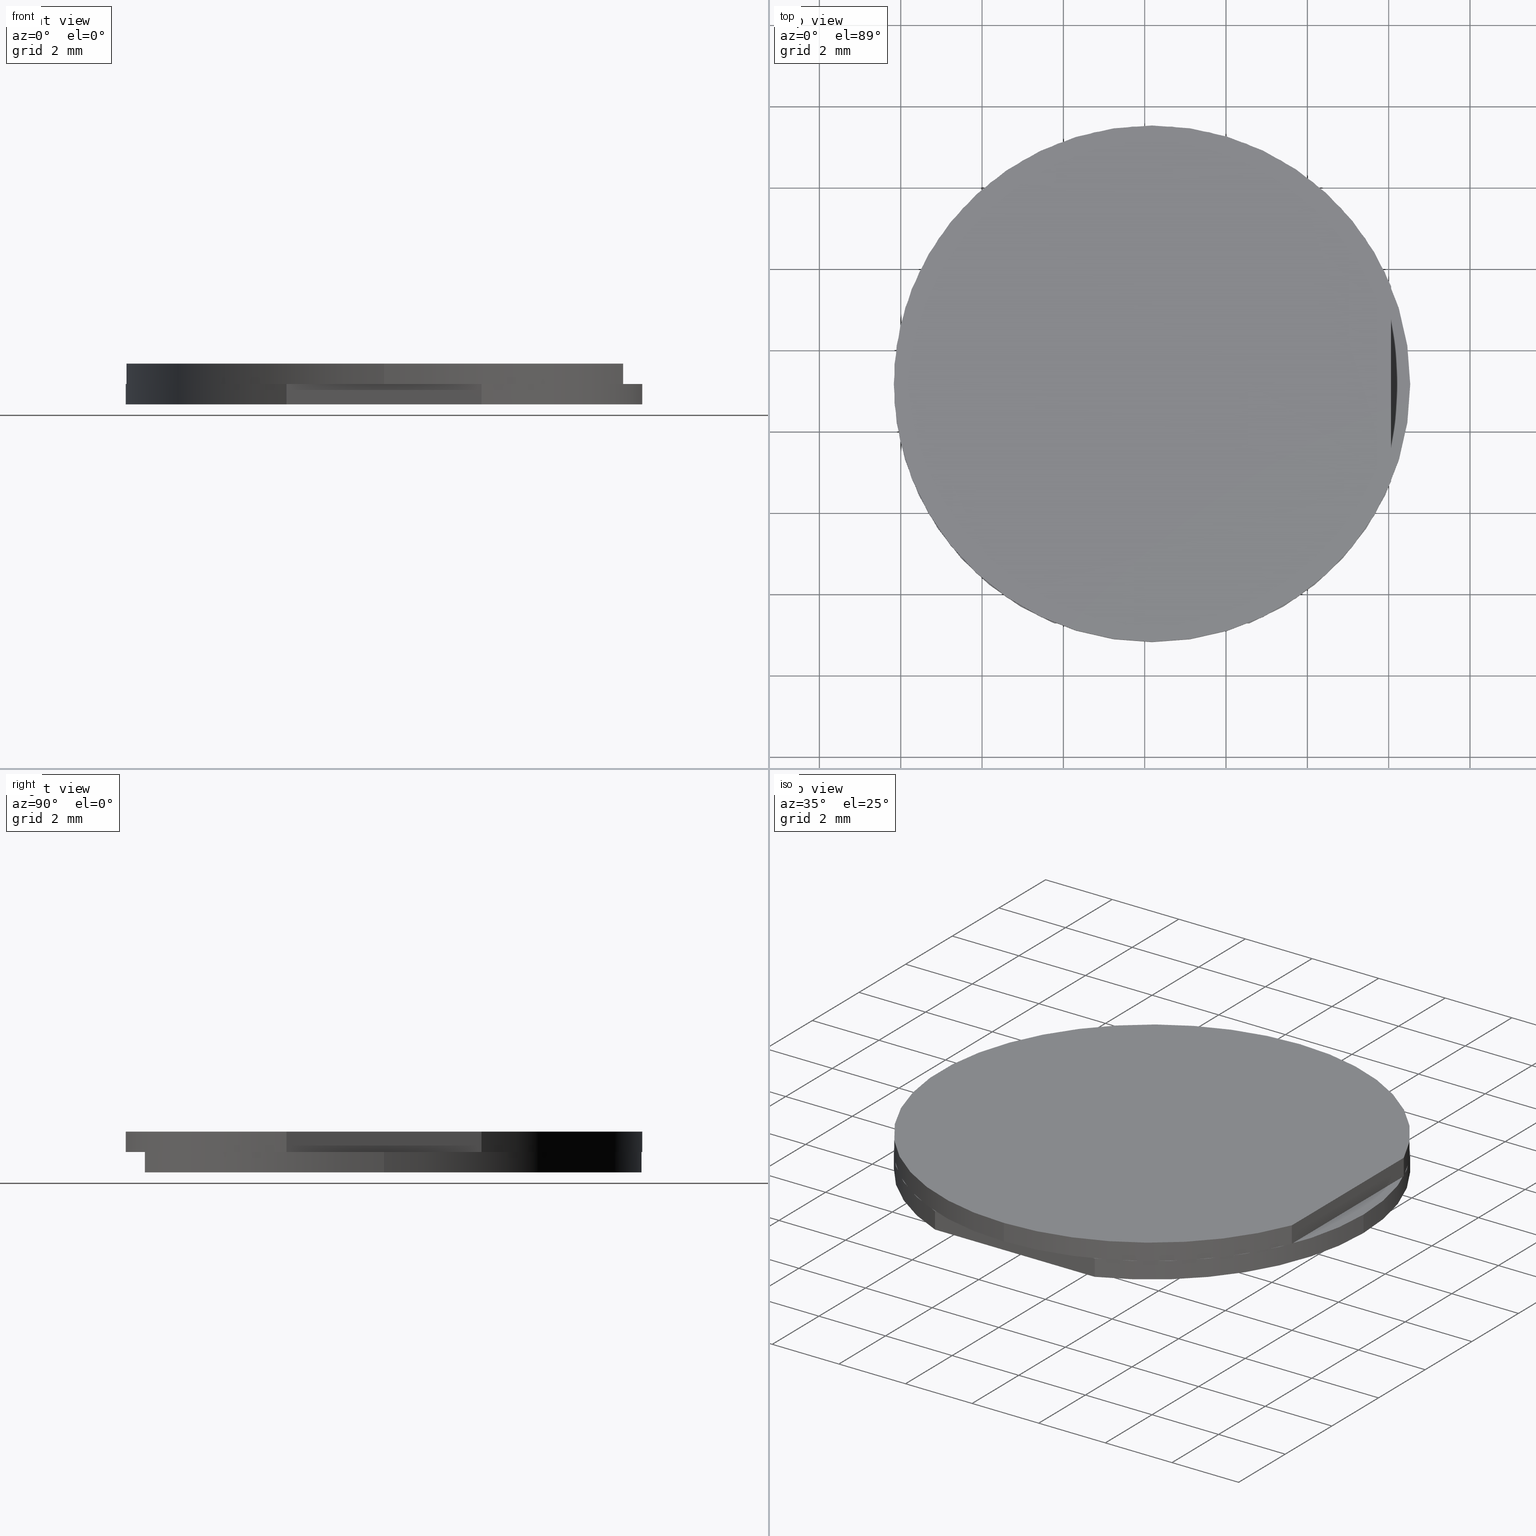
[diagram: canonical four-view strip — front | top / right | iso, engineering-drawing reading convention]
A machine part, canonical four-view strip (front | top / right | iso — engineering-drawing reading convention). The complete STEP part file that produces these views, byte-faithful:
ISO-10303-21;
HEADER;
FILE_DESCRIPTION (( 'STEP AP214' ),
    '1' );
FILE_NAME ('334000.STEP',
    '2020-08-21T07:01:11',
    ( '' ),
    ( '' ),
    'SwSTEP 2.0',
    'SolidWorks 2019',
    '' );
FILE_SCHEMA (( 'AUTOMOTIVE_DESIGN' ));
ENDSEC;

DATA;
#1 = PLANE ( 'NONE',  #296 ) ;
#2 = STYLED_ITEM ( 'NONE', ( #429 ), #545 ) ;
#3 =( LENGTH_UNIT ( ) NAMED_UNIT ( * ) SI_UNIT ( .MILLI., .METRE. ) );
#4 = SURFACE_SIDE_STYLE ('',( #124 ) ) ;
#5 = UNCERTAINTY_MEASURE_WITH_UNIT (LENGTH_MEASURE( 1.000000000000000082E-05 ), #3, 'distance_accuracy_value', 'NONE');
#6 = MANIFOLD_SOLID_BREP ( '��Ƭ-2-solid1', #138 ) ;
#7 =( NAMED_UNIT ( * ) PLANE_ANGLE_UNIT ( ) SI_UNIT ( $, .RADIAN. ) );
#8 = CIRCLE ( 'NONE', #123, 6.349999999999997868 ) ;
#9 =( LENGTH_UNIT ( ) NAMED_UNIT ( * ) SI_UNIT ( .MILLI., .METRE. ) );
#10 = FILL_AREA_STYLE_COLOUR ( '', #488 ) ;
#11 = CARTESIAN_POINT ( 'NONE',  ( 12.17957565082418014, -0.8299026143560144231, 4.486184743181586221 ) ) ;
#12 = CYLINDRICAL_SURFACE ( 'NONE', #269, 6.349999999999999645 ) ;
#13 =( GEOMETRIC_REPRESENTATION_CONTEXT ( 3 ) GLOBAL_UNCERTAINTY_ASSIGNED_CONTEXT ( ( #5 ) ) GLOBAL_UNIT_ASSIGNED_CONTEXT ( ( #3, #385, #416 ) ) REPRESENTATION_CONTEXT ( 'NONE', 'WORKASPACE' ) );
#14 = DIRECTION ( 'NONE',  ( 0.0000000000000000000, 0.0000000000000000000, 1.000000000000000000 ) ) ;
#15 =( NAMED_UNIT ( * ) PLANE_ANGLE_UNIT ( ) SI_UNIT ( $, .RADIAN. ) );
#16 = COLOUR_RGB ( '',1.000000000000000000, 1.000000000000000000, 1.000000000000000000 ) ;
#17 = EDGE_CURVE ( 'NONE', #458, #419, #405, .T. ) ;
#18 = SURFACE_STYLE_FILL_AREA ( #502 ) ;
#19 =( NAMED_UNIT ( * ) SI_UNIT ( $, .STERADIAN. ) SOLID_ANGLE_UNIT ( ) );
#20 = CARTESIAN_POINT ( 'NONE',  ( 12.17957565082418014, -0.8299026143560144231, 3.486184743181585333 ) ) ;
#21 = DIRECTION ( 'NONE',  ( 0.0000000000000000000, 0.0000000000000000000, 1.000000000000000000 ) ) ;
#22 = ORIENTED_EDGE ( 'NONE', *, *, #140, .F. ) ;
#23 = CARTESIAN_POINT ( 'NONE',  ( 12.17957565082418014, -0.8299026143560144231, 3.986184743181585777 ) ) ;
#24 = CARTESIAN_POINT ( 'NONE',  ( 12.17957565082418014, -6.709902614356014539, 3.486184743181585333 ) ) ;
#25 = MECHANICAL_DESIGN_GEOMETRIC_PRESENTATION_REPRESENTATION (  '', ( #427 ), #146 ) ;
#26 = SURFACE_STYLE_USAGE ( .BOTH. , #339 ) ;
#27 = ORIENTED_EDGE ( 'NONE', *, *, #93, .T. ) ;
#28 =( NAMED_UNIT ( * ) SI_UNIT ( $, .STERADIAN. ) SOLID_ANGLE_UNIT ( ) );
#29 = SURFACE_STYLE_USAGE ( .BOTH. , #490 ) ;
#30 = AXIS2_PLACEMENT_3D ( 'NONE', #268, #14, #333 ) ;
#31 = FILL_AREA_STYLE ('',( #380 ) ) ;
#32 = SURFACE_STYLE_USAGE ( .BOTH. , #456 ) ;
#33 = FACE_OUTER_BOUND ( 'NONE', #75, .T. ) ;
#34 = ORIENTED_EDGE ( 'NONE', *, *, #186, .T. ) ;
#35 = ORIENTED_EDGE ( 'NONE', *, *, #362, .T. ) ;
#36 = CARTESIAN_POINT ( 'NONE',  ( 12.17957565082418014, -0.8299026143560144231, 3.486184743181585333 ) ) ;
#37 =( GEOMETRIC_REPRESENTATION_CONTEXT ( 3 ) GLOBAL_UNCERTAINTY_ASSIGNED_CONTEXT ( ( #225 ) ) GLOBAL_UNIT_ASSIGNED_CONTEXT ( ( #109, #64, #189 ) ) REPRESENTATION_CONTEXT ( 'NONE', 'WORKASPACE' ) );
#38 = CIRCLE ( 'NONE', #232, 6.349999999999999645 ) ;
#39 = FILL_AREA_STYLE ('',( #513 ) ) ;
#40 = VERTEX_POINT ( 'NONE', #174 ) ;
#41 = MECHANICAL_DESIGN_GEOMETRIC_PRESENTATION_REPRESENTATION (  '', ( #527 ), #504 ) ;
#42 = ORIENTED_EDGE ( 'NONE', *, *, #403, .F. ) ;
#43 = AXIS2_PLACEMENT_3D ( 'NONE', #297, #149, #457 ) ;
#44 = FILL_AREA_STYLE_COLOUR ( '', #381 ) ;
#45 = PRESENTATION_LAYER_ASSIGNMENT (  '', '', ( #476 ) ) ;
#46 = DIRECTION ( 'NONE',  ( -1.000000000000000000, -0.0000000000000000000, -0.0000000000000000000 ) ) ;
#47 = DIRECTION ( 'NONE',  ( 1.110223024625156294E-16, 1.000000000000000000, 0.0000000000000000000 ) ) ;
#48 = CARTESIAN_POINT ( 'NONE',  ( 12.17957565082418014, -0.8299026143560144231, 3.986184743181585777 ) ) ;
#49 = PRESENTATION_LAYER_ASSIGNMENT (  '', '', ( #531 ) ) ;
#50 = SURFACE_STYLE_FILL_AREA ( #432 ) ;
#51 = CARTESIAN_POINT ( 'NONE',  ( 12.17957565082418014, -0.8299026143560144231, 3.986184743181585777 ) ) ;
#52 = EDGE_CURVE ( 'NONE', #199, #471, #486, .T. ) ;
#53 =( GEOMETRIC_REPRESENTATION_CONTEXT ( 3 ) GLOBAL_UNCERTAINTY_ASSIGNED_CONTEXT ( ( #313 ) ) GLOBAL_UNIT_ASSIGNED_CONTEXT ( ( #77, #256, #408 ) ) REPRESENTATION_CONTEXT ( 'NONE', 'WORKASPACE' ) );
#54 = DIRECTION ( 'NONE',  ( 0.0000000000000000000, -0.0000000000000000000, -1.000000000000000000 ) ) ;
#55 = AXIS2_PLACEMENT_3D ( 'NONE', #370, #499, #441 ) ;
#56 = DIRECTION ( 'NONE',  ( 0.0000000000000000000, -0.0000000000000000000, 1.000000000000000000 ) ) ;
#57 = CARTESIAN_POINT ( 'NONE',  ( 12.17957565082418014, -7.179902614356014290, 4.486184743181586221 ) ) ;
#58 = COLOUR_RGB ( '',1.000000000000000000, 1.000000000000000000, 1.000000000000000000 ) ;
#59 = SURFACE_STYLE_FILL_AREA ( #440 ) ;
#60 = ADVANCED_FACE ( 'NONE', ( #173 ), #1, .F. ) ;
#61 = UNCERTAINTY_MEASURE_WITH_UNIT (LENGTH_MEASURE( 1.000000000000000082E-05 ), #201, 'distance_accuracy_value', 'NONE');
#62 = CYLINDRICAL_SURFACE ( 'NONE', #86, 6.349999999999999645 ) ;
#63 = CARTESIAN_POINT ( 'NONE',  ( 12.17957565082418014, -7.179902614356014290, 4.486184743181586221 ) ) ;
#64 =( NAMED_UNIT ( * ) PLANE_ANGLE_UNIT ( ) SI_UNIT ( $, .RADIAN. ) );
#65 = DIRECTION ( 'NONE',  ( 1.000000000000000000, 0.0000000000000000000, -0.0000000000000000000 ) ) ;
#66 = EDGE_LOOP ( 'NONE', ( #516, #305, #409, #253 ) ) ;
#67 = FACE_OUTER_BOUND ( 'NONE', #120, .T. ) ;
#68 = PRESENTATION_LAYER_ASSIGNMENT (  '', '', ( #325 ) ) ;
#69 = SURFACE_STYLE_USAGE ( .BOTH. , #418 ) ;
#70 = ORIENTED_EDGE ( 'NONE', *, *, #76, .T. ) ;
#71 = DIRECTION ( 'NONE',  ( 0.0000000000000000000, 0.0000000000000000000, 1.000000000000000000 ) ) ;
#72 = ORIENTED_EDGE ( 'NONE', *, *, #345, .F. ) ;
#73 = DIRECTION ( 'NONE',  ( 0.0000000000000000000, 0.0000000000000000000, 1.000000000000000000 ) ) ;
#74 = EDGE_LOOP ( 'NONE', ( #205, #334, #375, #161 ) ) ;
#75 = EDGE_LOOP ( 'NONE', ( #368, #467, #414, #506 ) ) ;
#76 = EDGE_CURVE ( 'NONE', #458, #420, #426, .T. ) ;
#77 =( LENGTH_UNIT ( ) NAMED_UNIT ( * ) SI_UNIT ( .MILLI., .METRE. ) );
#78 = VERTEX_POINT ( 'NONE', #525 ) ;
#79 = DIRECTION ( 'NONE',  ( 1.000000000000000000, 0.0000000000000000000, 0.0000000000000000000 ) ) ;
#80 =( NAMED_UNIT ( * ) SI_UNIT ( $, .STERADIAN. ) SOLID_ANGLE_UNIT ( ) );
#81 = APPLICATION_CONTEXT ( 'automotive_design' ) ;
#82 = ORIENTED_EDGE ( 'NONE', *, *, #345, .T. ) ;
#83 = ADVANCED_FACE ( 'NONE', ( #89 ), #273, .T. ) ;
#84 = LINE ( 'NONE', #185, #382 ) ;
#85 = FACE_OUTER_BOUND ( 'NONE', #157, .T. ) ;
#86 = AXIS2_PLACEMENT_3D ( 'NONE', #142, #361, #103 ) ;
#87 = DIRECTION ( 'NONE',  ( 0.0000000000000000000, 0.0000000000000000000, 1.000000000000000000 ) ) ;
#88 = AXIS2_PLACEMENT_3D ( 'NONE', #51, #348, #176 ) ;
#89 = FACE_OUTER_BOUND ( 'NONE', #115, .T. ) ;
#90 = FILL_AREA_STYLE_COLOUR ( '', #125 ) ;
#91 = ADVANCED_FACE ( 'NONE', ( #475 ), #12, .T. ) ;
#92 = CARTESIAN_POINT ( 'NONE',  ( 14.57709520236072720, -6.709902614356014539, 3.986184743181585777 ) ) ;
#93 = EDGE_CURVE ( 'NONE', #508, #255, #188, .T. ) ;
#94 = PRESENTATION_STYLE_ASSIGNMENT (( #481 ) ) ;
#95 = UNCERTAINTY_MEASURE_WITH_UNIT (LENGTH_MEASURE( 1.000000000000000082E-05 ), #401, 'distance_accuracy_value', 'NONE');
#96 =( NAMED_UNIT ( * ) SI_UNIT ( $, .STERADIAN. ) SOLID_ANGLE_UNIT ( ) );
#97 = CARTESIAN_POINT ( 'NONE',  ( 5.829575650824181388, -0.8299026143560144231, 3.986184743181585777 ) ) ;
#98 = STYLED_ITEM ( 'NONE', ( #387 ), #307 ) ;
#99 = FILL_AREA_STYLE_COLOUR ( '', #210 ) ;
#100 = UNCERTAINTY_MEASURE_WITH_UNIT (LENGTH_MEASURE( 1.000000000000000082E-05 ), #377, 'distance_accuracy_value', 'NONE');
#101 = FILL_AREA_STYLE ('',( #108 ) ) ;
#102 = AXIS2_PLACEMENT_3D ( 'NONE', #435, #56, #47 ) ;
#103 = DIRECTION ( 'NONE',  ( 0.0000000000000000000, -1.000000000000000000, 0.0000000000000000000 ) ) ;
#104 = PRODUCT ( '334000', '334000', '', ( #220 ) ) ;
#105 = CARTESIAN_POINT ( 'NONE',  ( 9.782056099287634865, -6.709902614356014539, 3.986184743181585777 ) ) ;
#106 = VECTOR ( 'NONE', #290, 1000.000000000000000 ) ;
#107 = FILL_AREA_STYLE ('',( #492 ) ) ;
#108 = FILL_AREA_STYLE_COLOUR ( '', #148 ) ;
#109 =( LENGTH_UNIT ( ) NAMED_UNIT ( * ) SI_UNIT ( .MILLI., .METRE. ) );
#110 = PRESENTATION_STYLE_ASSIGNMENT (( #32 ) ) ;
#111 = CARTESIAN_POINT ( 'NONE',  ( 18.52957565082417801, -0.8299026143560136459, 3.486184743181585333 ) ) ;
#112 = AXIS2_PLACEMENT_3D ( 'NONE', #20, #448, #65 ) ;
#113 = ORIENTED_EDGE ( 'NONE', *, *, #158, .F. ) ;
#114 = CARTESIAN_POINT ( 'NONE',  ( 18.05957565082417915, -3.227422165892561257, 4.486184743181586221 ) ) ;
#115 = EDGE_LOOP ( 'NONE', ( #162, #82, #335, #497 ) ) ;
#116 = PLANE ( 'NONE',  #112 ) ;
#117 = AXIS2_PLACEMENT_3D ( 'NONE', #11, #183, #315 ) ;
#118 =( GEOMETRIC_REPRESENTATION_CONTEXT ( 3 ) GLOBAL_UNCERTAINTY_ASSIGNED_CONTEXT ( ( #141 ) ) GLOBAL_UNIT_ASSIGNED_CONTEXT ( ( #9, #7, #96 ) ) REPRESENTATION_CONTEXT ( 'NONE', 'WORKASPACE' ) );
#119 = CYLINDRICAL_SURFACE ( 'NONE', #43, 6.349999999999999645 ) ;
#120 = EDGE_LOOP ( 'NONE', ( #72, #150, #298, #127 ) ) ;
#121 = PRESENTATION_LAYER_ASSIGNMENT (  '', '', ( #2 ) ) ;
#122 = DIRECTION ( 'NONE',  ( -1.000000000000000000, 1.110223024625156294E-16, 0.0000000000000000000 ) ) ;
#123 = AXIS2_PLACEMENT_3D ( 'NONE', #36, #21, #213 ) ;
#124 = SURFACE_STYLE_FILL_AREA ( #39 ) ;
#125 = COLOUR_RGB ( '',1.000000000000000000, 1.000000000000000000, 1.000000000000000000 ) ;
#126 = MECHANICAL_DESIGN_GEOMETRIC_PRESENTATION_REPRESENTATION (  '', ( #197 ), #37 ) ;
#127 = ORIENTED_EDGE ( 'NONE', *, *, #52, .T. ) ;
#128 = AXIS2_PLACEMENT_3D ( 'NONE', #303, #391, #428 ) ;
#129 = LINE ( 'NONE', #472, #212 ) ;
#130 = FILL_AREA_STYLE_COLOUR ( '', #58 ) ;
#131 = DIRECTION ( 'NONE',  ( 0.0000000000000000000, -0.0000000000000000000, 1.000000000000000000 ) ) ;
#132 = STYLED_ITEM ( 'NONE', ( #224 ), #60 ) ;
#133 = SURFACE_STYLE_FILL_AREA ( #393 ) ;
#134 = COLOUR_RGB ( '',1.000000000000000000, 1.000000000000000000, 1.000000000000000000 ) ;
#135 = CARTESIAN_POINT ( 'NONE',  ( 5.829575650824181388, -0.8299026143560144231, 3.986184743181585777 ) ) ;
#136 =( NAMED_UNIT ( * ) SI_UNIT ( $, .STERADIAN. ) SOLID_ANGLE_UNIT ( ) );
#137 = SURFACE_SIDE_STYLE ('',( #559 ) ) ;
#138 = CLOSED_SHELL ( 'NONE', ( #83, #310, #191, #500, #60, #223 ) ) ;
#139 =( GEOMETRIC_REPRESENTATION_CONTEXT ( 3 ) GLOBAL_UNCERTAINTY_ASSIGNED_CONTEXT ( ( #283 ) ) GLOBAL_UNIT_ASSIGNED_CONTEXT ( ( #351, #314, #438 ) ) REPRESENTATION_CONTEXT ( 'NONE', 'WORKASPACE' ) );
#140 = EDGE_CURVE ( 'NONE', #341, #415, #523, .T. ) ;
#141 = UNCERTAINTY_MEASURE_WITH_UNIT (LENGTH_MEASURE( 1.000000000000000082E-05 ), #9, 'distance_accuracy_value', 'NONE');
#142 = CARTESIAN_POINT ( 'NONE',  ( 12.17957565082418014, -0.8299026143560144231, 4.486184743181586221 ) ) ;
#143 = DIRECTION ( 'NONE',  ( -1.000000000000000000, -0.0000000000000000000, 0.0000000000000000000 ) ) ;
#144 = CARTESIAN_POINT ( 'NONE',  ( 12.17957565082418014, -0.8299026143560144231, 3.486184743181585333 ) ) ;
#145 = AXIS2_PLACEMENT_3D ( 'NONE', #23, #406, #364 ) ;
#146 =( GEOMETRIC_REPRESENTATION_CONTEXT ( 3 ) GLOBAL_UNCERTAINTY_ASSIGNED_CONTEXT ( ( #532 ) ) GLOBAL_UNIT_ASSIGNED_CONTEXT ( ( #328, #444, #19 ) ) REPRESENTATION_CONTEXT ( 'NONE', 'WORKASPACE' ) );
#147 = EDGE_CURVE ( 'NONE', #199, #250, #84, .T. ) ;
#148 = COLOUR_RGB ( '',1.000000000000000000, 1.000000000000000000, 1.000000000000000000 ) ;
#149 = DIRECTION ( 'NONE',  ( -0.0000000000000000000, -0.0000000000000000000, -1.000000000000000000 ) ) ;
#150 = ORIENTED_EDGE ( 'NONE', *, *, #379, .F. ) ;
#151 = DIRECTION ( 'NONE',  ( 0.0000000000000000000, -0.0000000000000000000, -1.000000000000000000 ) ) ;
#152 = PLANE ( 'NONE',  #304 ) ;
#153 =( NAMED_UNIT ( * ) SI_UNIT ( $, .STERADIAN. ) SOLID_ANGLE_UNIT ( ) );
#154 = MECHANICAL_DESIGN_GEOMETRIC_PRESENTATION_REPRESENTATION (  '', ( #446 ), #431 ) ;
#155 = DIRECTION ( 'NONE',  ( 0.0000000000000000000, 0.0000000000000000000, 1.000000000000000000 ) ) ;
#156 = VERTEX_POINT ( 'NONE', #397 ) ;
#157 = EDGE_LOOP ( 'NONE', ( #425, #70, #462, #242 ) ) ;
#158 = EDGE_CURVE ( 'NONE', #508, #539, #129, .T. ) ;
#159 = EDGE_CURVE ( 'NONE', #40, #458, #38, .T. ) ;
#160 = CARTESIAN_POINT ( 'NONE',  ( 18.05957565082417915, -6.717240688047029451, 4.486184743181586221 ) ) ;
#161 = ORIENTED_EDGE ( 'NONE', *, *, #202, .T. ) ;
#162 = ORIENTED_EDGE ( 'NONE', *, *, #159, .F. ) ;
#163 = STYLED_ITEM ( 'NONE', ( #198 ), #223 ) ;
#164 = AXIS2_PLACEMENT_3D ( 'NONE', #390, #221, #347 ) ;
#165 = EDGE_CURVE ( 'NONE', #156, #78, #240, .T. ) ;
#166 = ORIENTED_EDGE ( 'NONE', *, *, #403, .T. ) ;
#167 = PRESENTATION_STYLE_ASSIGNMENT (( #376 ) ) ;
#168 = PRESENTATION_STYLE_ASSIGNMENT (( #495 ) ) ;
#169 = EDGE_LOOP ( 'NONE', ( #453, #332, #246, #411 ) ) ;
#170 = SHAPE_DEFINITION_REPRESENTATION ( #279, #545 ) ;
#171 = MECHANICAL_DESIGN_GEOMETRIC_PRESENTATION_REPRESENTATION (  '', ( #522 ), #452 ) ;
#172 =( GEOMETRIC_REPRESENTATION_CONTEXT ( 3 ) GLOBAL_UNCERTAINTY_ASSIGNED_CONTEXT ( ( #360 ) ) GLOBAL_UNIT_ASSIGNED_CONTEXT ( ( #311, #344, #219 ) ) REPRESENTATION_CONTEXT ( 'NONE', 'WORKASPACE' ) );
#173 = FACE_OUTER_BOUND ( 'NONE', #66, .T. ) ;
#174 = CARTESIAN_POINT ( 'NONE',  ( 12.17957565082418014, 5.520097385643985000, 4.486184743181586221 ) ) ;
#175 = DIRECTION ( 'NONE',  ( -1.000000000000000000, 0.0000000000000000000, 0.0000000000000000000 ) ) ;
#176 = DIRECTION ( 'NONE',  ( 1.000000000000000000, 0.0000000000000000000, 0.0000000000000000000 ) ) ;
#177 = CARTESIAN_POINT ( 'NONE',  ( 18.05957565082417915, -3.227422165892561257, 4.486184743181586221 ) ) ;
#178 = MECHANICAL_DESIGN_GEOMETRIC_PRESENTATION_REPRESENTATION (  '', ( #163 ), #53 ) ;
#179 = FILL_AREA_STYLE ('',( #99 ) ) ;
#180 = DIRECTION ( 'NONE',  ( 0.0000000000000000000, 0.0000000000000000000, 1.000000000000000000 ) ) ;
#181 = SURFACE_STYLE_USAGE ( .BOTH. , #137 ) ;
#182 = VECTOR ( 'NONE', #151, 1000.000000000000000 ) ;
#183 = DIRECTION ( 'NONE',  ( 0.0000000000000000000, -0.0000000000000000000, -1.000000000000000000 ) ) ;
#184 = FILL_AREA_STYLE_COLOUR ( '', #555 ) ;
#185 = CARTESIAN_POINT ( 'NONE',  ( 18.05957565082417915, -0.8299026143560150892, 3.986184743181585777 ) ) ;
#186 = EDGE_CURVE ( 'NONE', #341, #539, #469, .T. ) ;
#187 =( GEOMETRIC_REPRESENTATION_CONTEXT ( 3 ) GLOBAL_UNCERTAINTY_ASSIGNED_CONTEXT ( ( #211 ) ) GLOBAL_UNIT_ASSIGNED_CONTEXT ( ( #245, #413, #374 ) ) REPRESENTATION_CONTEXT ( 'NONE', 'WORKASPACE' ) );
#188 = CIRCLE ( 'NONE', #88, 6.349999999999997868 ) ;
#189 =( NAMED_UNIT ( * ) SI_UNIT ( $, .STERADIAN. ) SOLID_ANGLE_UNIT ( ) );
#190 = FILL_AREA_STYLE ('',( #412 ) ) ;
#191 = ADVANCED_FACE ( 'NONE', ( #67 ), #62, .T. ) ;
#192 = SURFACE_SIDE_STYLE ('',( #18 ) ) ;
#193 = CARTESIAN_POINT ( 'NONE',  ( 18.52957565082417801, -0.8299026143560136459, 3.986184743181585777 ) ) ;
#194 = ORIENTED_EDGE ( 'NONE', *, *, #147, .F. ) ;
#195 = CARTESIAN_POINT ( 'NONE',  ( 5.829575650824181388, -0.8299026143560144231, 3.486184743181585333 ) ) ;
#196 = PRESENTATION_LAYER_ASSIGNMENT (  '', '', ( #468 ) ) ;
#197 = STYLED_ITEM ( 'NONE', ( #442 ), #191 ) ;
#198 = PRESENTATION_STYLE_ASSIGNMENT (( #26 ) ) ;
#199 = VERTEX_POINT ( 'NONE', #324 ) ;
#200 = LINE ( 'NONE', #533, #340 ) ;
#201 =( LENGTH_UNIT ( ) NAMED_UNIT ( * ) SI_UNIT ( .MILLI., .METRE. ) );
#202 = EDGE_CURVE ( 'NONE', #78, #539, #278, .T. ) ;
#203 = AXIS2_PLACEMENT_3D ( 'NONE', #556, #270, #295 ) ;
#204 = ORIENTED_EDGE ( 'NONE', *, *, #362, .F. ) ;
#205 = ORIENTED_EDGE ( 'NONE', *, *, #186, .F. ) ;
#206 = ADVANCED_FACE ( 'NONE', ( #365 ), #152, .T. ) ;
#207 = PLANE ( 'NONE',  #237 ) ;
#208 = VERTEX_POINT ( 'NONE', #111 ) ;
#209 = DIRECTION ( 'NONE',  ( 0.0000000000000000000, 0.0000000000000000000, 1.000000000000000000 ) ) ;
#210 = COLOUR_RGB ( '',1.000000000000000000, 1.000000000000000000, 1.000000000000000000 ) ;
#211 = UNCERTAINTY_MEASURE_WITH_UNIT (LENGTH_MEASURE( 1.000000000000000082E-05 ), #245, 'distance_accuracy_value', 'NONE');
#212 = VECTOR ( 'NONE', #46, 1000.000000000000000 ) ;
#213 = DIRECTION ( 'NONE',  ( 1.000000000000000000, 0.0000000000000000000, 0.0000000000000000000 ) ) ;
#214 = CARTESIAN_POINT ( 'NONE',  ( 0.0000000000000000000, 0.0000000000000000000, 0.0000000000000000000 ) ) ;
#215 = ORIENTED_EDGE ( 'NONE', *, *, #252, .T. ) ;
#216 = COLOUR_RGB ( '',1.000000000000000000, 1.000000000000000000, 1.000000000000000000 ) ;
#217 =( NAMED_UNIT ( * ) PLANE_ANGLE_UNIT ( ) SI_UNIT ( $, .RADIAN. ) );
#218 = MECHANICAL_DESIGN_GEOMETRIC_PRESENTATION_REPRESENTATION (  '', ( #463 ), #228 ) ;
#219 =( NAMED_UNIT ( * ) SI_UNIT ( $, .STERADIAN. ) SOLID_ANGLE_UNIT ( ) );
#220 = PRODUCT_CONTEXT ( 'NONE', #287, 'mechanical' ) ;
#221 = DIRECTION ( 'NONE',  ( 0.0000000000000000000, 0.0000000000000000000, 1.000000000000000000 ) ) ;
#222 = PRESENTATION_STYLE_ASSIGNMENT (( #236 ) ) ;
#223 = ADVANCED_FACE ( 'NONE', ( #383 ), #540, .F. ) ;
#224 = PRESENTATION_STYLE_ASSIGNMENT (( #520 ) ) ;
#225 = UNCERTAINTY_MEASURE_WITH_UNIT (LENGTH_MEASURE( 1.000000000000000082E-05 ), #109, 'distance_accuracy_value', 'NONE');
#226 = SURFACE_STYLE_USAGE ( .BOTH. , #394 ) ;
#227 = CARTESIAN_POINT ( 'NONE',  ( 12.17957565082418014, 5.520097385643985000, 3.986184743181585777 ) ) ;
#228 =( GEOMETRIC_REPRESENTATION_CONTEXT ( 3 ) GLOBAL_UNCERTAINTY_ASSIGNED_CONTEXT ( ( #61 ) ) GLOBAL_UNIT_ASSIGNED_CONTEXT ( ( #201, #239, #28 ) ) REPRESENTATION_CONTEXT ( 'NONE', 'WORKASPACE' ) );
#229 = DIRECTION ( 'NONE',  ( -1.110223024625156294E-16, -1.000000000000000000, 0.0000000000000000000 ) ) ;
#230 = VECTOR ( 'NONE', #331, 1000.000000000000000 ) ;
#231 = UNCERTAINTY_MEASURE_WITH_UNIT (LENGTH_MEASURE( 1.000000000000000082E-05 ), #384, 'distance_accuracy_value', 'NONE');
#232 = AXIS2_PLACEMENT_3D ( 'NONE', #312, #180, #447 ) ;
#233 = SURFACE_SIDE_STYLE ('',( #357 ) ) ;
#234 =( LENGTH_UNIT ( ) NAMED_UNIT ( * ) SI_UNIT ( .MILLI., .METRE. ) );
#235 = FACE_OUTER_BOUND ( 'NONE', #294, .T. ) ;
#236 = SURFACE_STYLE_USAGE ( .BOTH. , #233 ) ;
#237 = AXIS2_PLACEMENT_3D ( 'NONE', #474, #519, #131 ) ;
#238 = CARTESIAN_POINT ( 'NONE',  ( 12.17957565082418014, -0.8299026143560144231, 4.486184743181586221 ) ) ;
#239 =( NAMED_UNIT ( * ) PLANE_ANGLE_UNIT ( ) SI_UNIT ( $, .RADIAN. ) );
#240 = LINE ( 'NONE', #24, #538 ) ;
#241 =( GEOMETRIC_REPRESENTATION_CONTEXT ( 3 ) GLOBAL_UNCERTAINTY_ASSIGNED_CONTEXT ( ( #489 ) ) GLOBAL_UNIT_ASSIGNED_CONTEXT ( ( #466, #515, #306 ) ) REPRESENTATION_CONTEXT ( 'NONE', 'WORKASPACE' ) );
#242 = ORIENTED_EDGE ( 'NONE', *, *, #544, .T. ) ;
#243 = SURFACE_STYLE_FILL_AREA ( #107 ) ;
#244 = CIRCLE ( 'NONE', #557, 6.349999999999997868 ) ;
#245 =( LENGTH_UNIT ( ) NAMED_UNIT ( * ) SI_UNIT ( .MILLI., .METRE. ) );
#246 = ORIENTED_EDGE ( 'NONE', *, *, #417, .T. ) ;
#247 = PRESENTATION_LAYER_ASSIGNMENT (  '', '', ( #427 ) ) ;
#248 = DIRECTION ( 'NONE',  ( 0.0000000000000000000, 0.0000000000000000000, 1.000000000000000000 ) ) ;
#249 = MECHANICAL_DESIGN_GEOMETRIC_PRESENTATION_REPRESENTATION (  '', ( #468 ), #139 ) ;
#250 = VERTEX_POINT ( 'NONE', #254 ) ;
#251 = CIRCLE ( 'NONE', #422, 6.349999999999999645 ) ;
#252 = EDGE_CURVE ( 'NONE', #337, #419, #302, .T. ) ;
#253 = ORIENTED_EDGE ( 'NONE', *, *, #437, .F. ) ;
#254 = CARTESIAN_POINT ( 'NONE',  ( 18.05957565082417915, -3.227422165892561257, 3.986184743181585777 ) ) ;
#255 = VERTEX_POINT ( 'NONE', #461 ) ;
#256 =( NAMED_UNIT ( * ) PLANE_ANGLE_UNIT ( ) SI_UNIT ( $, .RADIAN. ) );
#257 = SURFACE_STYLE_FILL_AREA ( #31 ) ;
#258 = CYLINDRICAL_SURFACE ( 'NONE', #128, 6.349999999999999645 ) ;
#259 = CIRCLE ( 'NONE', #367, 6.349999999999997868 ) ;
#260 = EDGE_CURVE ( 'NONE', #415, #78, #259, .T. ) ;
#261 = ORIENTED_EDGE ( 'NONE', *, *, #280, .T. ) ;
#262 = DIRECTION ( 'NONE',  ( 1.000000000000000000, 0.0000000000000000000, 0.0000000000000000000 ) ) ;
#263 = MECHANICAL_DESIGN_GEOMETRIC_PRESENTATION_REPRESENTATION (  '', ( #2 ), #13 ) ;
#264 = ORIENTED_EDGE ( 'NONE', *, *, #165, .T. ) ;
#265 = DIRECTION ( 'NONE',  ( 1.110223024625156294E-16, 1.000000000000000000, 0.0000000000000000000 ) ) ;
#266 = FILL_AREA_STYLE_COLOUR ( '', #134 ) ;
#267 = SURFACE_STYLE_USAGE ( .BOTH. , #473 ) ;
#268 = CARTESIAN_POINT ( 'NONE',  ( 12.17957565082418014, -0.8299026143560144231, 3.986184743181585777 ) ) ;
#269 = AXIS2_PLACEMENT_3D ( 'NONE', #317, #485, #175 ) ;
#270 = DIRECTION ( 'NONE',  ( 0.0000000000000000000, 0.0000000000000000000, 1.000000000000000000 ) ) ;
#271 = EDGE_CURVE ( 'NONE', #156, #208, #8, .T. ) ;
#272 =( NAMED_UNIT ( * ) PLANE_ANGLE_UNIT ( ) SI_UNIT ( $, .RADIAN. ) );
#273 = CYLINDRICAL_SURFACE ( 'NONE', #529, 6.349999999999999645 ) ;
#274 = PLANE ( 'NONE',  #102 ) ;
#275 = LINE ( 'NONE', #355, #359 ) ;
#276 = DIRECTION ( 'NONE',  ( -0.0000000000000000000, -0.0000000000000000000, -1.000000000000000000 ) ) ;
#277 = PRESENTATION_LAYER_ASSIGNMENT (  '', '', ( #446 ) ) ;
#278 = LINE ( 'NONE', #105, #106 ) ;
#279 = PRODUCT_DEFINITION_SHAPE ( 'NONE', 'NONE',  #320 ) ;
#280 = EDGE_CURVE ( 'NONE', #255, #208, #336, .T. ) ;
#281 = CARTESIAN_POINT ( 'NONE',  ( 12.17957565082418014, -7.179902614356014290, 3.986184743181585777 ) ) ;
#282 = PRESENTATION_STYLE_ASSIGNMENT (( #450 ) ) ;
#283 = UNCERTAINTY_MEASURE_WITH_UNIT (LENGTH_MEASURE( 1.000000000000000082E-05 ), #351, 'distance_accuracy_value', 'NONE');
#284 = FACE_OUTER_BOUND ( 'NONE', #74, .T. ) ;
#285 = FILL_AREA_STYLE ('',( #507 ) ) ;
#286 = ADVANCED_FACE ( 'NONE', ( #501 ), #119, .T. ) ;
#287 = APPLICATION_CONTEXT ( 'automotive_design' ) ;
#288 = PRESENTATION_LAYER_ASSIGNMENT (  '', '', ( #527 ) ) ;
#289 = CARTESIAN_POINT ( 'NONE',  ( 18.05957565082417915, 1.567616937180530634, 4.486184743181586221 ) ) ;
#290 = DIRECTION ( 'NONE',  ( 0.0000000000000000000, 0.0000000000000000000, 1.000000000000000000 ) ) ;
#291 = DIRECTION ( 'NONE',  ( 1.000000000000000000, 0.0000000000000000000, 0.0000000000000000000 ) ) ;
#292 = FILL_AREA_STYLE_COLOUR ( '', #404 ) ;
#293 = ORIENTED_EDGE ( 'NONE', *, *, #260, .F. ) ;
#294 = EDGE_LOOP ( 'NONE', ( #554, #264, #293, #204 ) ) ;
#295 = DIRECTION ( 'NONE',  ( 0.0000000000000000000, 1.000000000000000000, 0.0000000000000000000 ) ) ;
#296 = AXIS2_PLACEMENT_3D ( 'NONE', #48, #350, #265 ) ;
#297 = CARTESIAN_POINT ( 'NONE',  ( 12.17957565082418014, -0.8299026143560144231, 3.986184743181585777 ) ) ;
#298 = ORIENTED_EDGE ( 'NONE', *, *, #389, .T. ) ;
#299 = APPLICATION_PROTOCOL_DEFINITION ( 'draft international standard', 'automotive_design', 1998, #287 ) ;
#300 = DIRECTION ( 'NONE',  ( 1.000000000000000000, 0.0000000000000000000, -0.0000000000000000000 ) ) ;
#301 = ORIENTED_EDGE ( 'NONE', *, *, #379, .T. ) ;
#302 = LINE ( 'NONE', #160, #230 ) ;
#303 = CARTESIAN_POINT ( 'NONE',  ( 12.17957565082418014, -0.8299026143560144231, 3.986184743181585777 ) ) ;
#304 = AXIS2_PLACEMENT_3D ( 'NONE', #319, #487, #300 ) ;
#305 = ORIENTED_EDGE ( 'NONE', *, *, #147, .T. ) ;
#306 =( NAMED_UNIT ( * ) SI_UNIT ( $, .STERADIAN. ) SOLID_ANGLE_UNIT ( ) );
#307 = ADVANCED_FACE ( 'NONE', ( #33 ), #207, .F. ) ;
#308 = SURFACE_SIDE_STYLE ('',( #133 ) ) ;
#309 = FILL_AREA_STYLE ('',( #130 ) ) ;
#310 = ADVANCED_FACE ( 'NONE', ( #85 ), #396, .T. ) ;
#311 =( LENGTH_UNIT ( ) NAMED_UNIT ( * ) SI_UNIT ( .MILLI., .METRE. ) );
#312 = CARTESIAN_POINT ( 'NONE',  ( 12.17957565082418014, -0.8299026143560144231, 4.486184743181586221 ) ) ;
#313 = UNCERTAINTY_MEASURE_WITH_UNIT (LENGTH_MEASURE( 1.000000000000000082E-05 ), #77, 'distance_accuracy_value', 'NONE');
#314 =( NAMED_UNIT ( * ) PLANE_ANGLE_UNIT ( ) SI_UNIT ( $, .RADIAN. ) );
#315 = DIRECTION ( 'NONE',  ( 0.0000000000000000000, -1.000000000000000000, 0.0000000000000000000 ) ) ;
#316 = PRESENTATION_LAYER_ASSIGNMENT (  '', '', ( #463 ) ) ;
#317 = CARTESIAN_POINT ( 'NONE',  ( 12.17957565082418014, -0.8299026143560144231, 3.986184743181585777 ) ) ;
#318 = SURFACE_STYLE_FILL_AREA ( #179 ) ;
#319 = CARTESIAN_POINT ( 'NONE',  ( 12.17957565082418014, -0.8299026143560144231, 3.986184743181585777 ) ) ;
#320 = PRODUCT_DEFINITION ( 'δ֪', '', #439, #421 ) ;
#321 = SURFACE_SIDE_STYLE ('',( #318 ) ) ;
#322 = SURFACE_SIDE_STYLE ('',( #491 ) ) ;
#323 = UNCERTAINTY_MEASURE_WITH_UNIT (LENGTH_MEASURE( 1.000000000000000082E-05 ), #479, 'distance_accuracy_value', 'NONE');
#324 = CARTESIAN_POINT ( 'NONE',  ( 18.05957565082417915, 1.567616937180531078, 3.986184743181585777 ) ) ;
#325 = STYLED_ITEM ( 'NONE', ( #496 ), #286 ) ;
#326 = FILL_AREA_STYLE_COLOUR ( '', #346 ) ;
#327 = MECHANICAL_DESIGN_GEOMETRIC_PRESENTATION_REPRESENTATION (  '', ( #132 ), #172 ) ;
#328 =( LENGTH_UNIT ( ) NAMED_UNIT ( * ) SI_UNIT ( .MILLI., .METRE. ) );
#329 = FILL_AREA_STYLE ('',( #292 ) ) ;
#330 = SURFACE_STYLE_FILL_AREA ( #190 ) ;
#331 = DIRECTION ( 'NONE',  ( -1.110223024625156294E-16, -1.000000000000000000, -0.0000000000000000000 ) ) ;
#332 = ORIENTED_EDGE ( 'NONE', *, *, #93, .F. ) ;
#333 = DIRECTION ( 'NONE',  ( 0.0000000000000000000, 1.000000000000000000, 0.0000000000000000000 ) ) ;
#334 = ORIENTED_EDGE ( 'NONE', *, *, #140, .T. ) ;
#335 = ORIENTED_EDGE ( 'NONE', *, *, #437, .T. ) ;
#336 = LINE ( 'NONE', #193, #547 ) ;
#337 = VERTEX_POINT ( 'NONE', #484 ) ;
#338 = EDGE_LOOP ( 'NONE', ( #215, #541, #194, #388 ) ) ;
#339 = SURFACE_SIDE_STYLE ('',( #546 ) ) ;
#340 = VECTOR ( 'NONE', #542, 1000.000000000000000 ) ;
#341 = VERTEX_POINT ( 'NONE', #97 ) ;
#342 = PRESENTATION_LAYER_ASSIGNMENT (  '', '', ( #522 ) ) ;
#343 = VECTOR ( 'NONE', #54, 1000.000000000000000 ) ;
#344 =( NAMED_UNIT ( * ) PLANE_ANGLE_UNIT ( ) SI_UNIT ( $, .RADIAN. ) );
#345 = EDGE_CURVE ( 'NONE', #40, #471, #275, .T. ) ;
#346 = COLOUR_RGB ( '',1.000000000000000000, 1.000000000000000000, 1.000000000000000000 ) ;
#347 = DIRECTION ( 'NONE',  ( 0.0000000000000000000, 1.000000000000000000, 0.0000000000000000000 ) ) ;
#348 = DIRECTION ( 'NONE',  ( 0.0000000000000000000, 0.0000000000000000000, 1.000000000000000000 ) ) ;
#349 =( NAMED_UNIT ( * ) PLANE_ANGLE_UNIT ( ) SI_UNIT ( $, .RADIAN. ) );
#350 = DIRECTION ( 'NONE',  ( 0.0000000000000000000, -0.0000000000000000000, 1.000000000000000000 ) ) ;
#351 =( LENGTH_UNIT ( ) NAMED_UNIT ( * ) SI_UNIT ( .MILLI., .METRE. ) );
#352 = FILL_AREA_STYLE ('',( #10 ) ) ;
#353 = FILL_AREA_STYLE ('',( #90 ) ) ;
#354 = CARTESIAN_POINT ( 'NONE',  ( 9.782056099287634865, -6.709902614356014539, 3.986184743181585777 ) ) ;
#355 = CARTESIAN_POINT ( 'NONE',  ( 12.17957565082418014, 5.520097385643985000, 4.486184743181586221 ) ) ;
#356 =( GEOMETRIC_REPRESENTATION_CONTEXT ( 3 ) GLOBAL_UNCERTAINTY_ASSIGNED_CONTEXT ( ( #100 ) ) GLOBAL_UNIT_ASSIGNED_CONTEXT ( ( #377, #373, #153 ) ) REPRESENTATION_CONTEXT ( 'NONE', 'WORKASPACE' ) );
#357 = SURFACE_STYLE_FILL_AREA ( #353 ) ;
#358 = ADVANCED_FACE ( 'NONE', ( #235 ), #116, .F. ) ;
#359 = VECTOR ( 'NONE', #436, 1000.000000000000000 ) ;
#360 = UNCERTAINTY_MEASURE_WITH_UNIT (LENGTH_MEASURE( 1.000000000000000082E-05 ), #311, 'distance_accuracy_value', 'NONE');
#361 = DIRECTION ( 'NONE',  ( 0.0000000000000000000, -0.0000000000000000000, -1.000000000000000000 ) ) ;
#362 = EDGE_CURVE ( 'NONE', #208, #415, #244, .T. ) ;
#363 =( GEOMETRIC_REPRESENTATION_CONTEXT ( 3 ) GLOBAL_UNCERTAINTY_ASSIGNED_CONTEXT ( ( #494 ) ) GLOBAL_UNIT_ASSIGNED_CONTEXT ( ( #234, #272, #136 ) ) REPRESENTATION_CONTEXT ( 'NONE', 'WORKASPACE' ) );
#364 = DIRECTION ( 'NONE',  ( 1.000000000000000000, 0.0000000000000000000, 0.0000000000000000000 ) ) ;
#365 = FACE_OUTER_BOUND ( 'NONE', #424, .T. ) ;
#366 = PRESENTATION_LAYER_ASSIGNMENT (  '', '', ( #528 ) ) ;
#367 = AXIS2_PLACEMENT_3D ( 'NONE', #464, #73, #79 ) ;
#368 = ORIENTED_EDGE ( 'NONE', *, *, #158, .T. ) ;
#369 = PRESENTATION_LAYER_ASSIGNMENT (  '', '', ( #197 ) ) ;
#370 = CARTESIAN_POINT ( 'NONE',  ( 12.17957565082418014, -0.8299026143560144231, 3.986184743181585777 ) ) ;
#371 = SURFACE_SIDE_STYLE ('',( #243 ) ) ;
#372 = ORIENTED_EDGE ( 'NONE', *, *, #252, .F. ) ;
#373 =( NAMED_UNIT ( * ) PLANE_ANGLE_UNIT ( ) SI_UNIT ( $, .RADIAN. ) );
#374 =( NAMED_UNIT ( * ) SI_UNIT ( $, .STERADIAN. ) SOLID_ANGLE_UNIT ( ) );
#375 = ORIENTED_EDGE ( 'NONE', *, *, #260, .T. ) ;
#376 = SURFACE_STYLE_USAGE ( .BOTH. , #549 ) ;
#377 =( LENGTH_UNIT ( ) NAMED_UNIT ( * ) SI_UNIT ( .MILLI., .METRE. ) );
#378 = MANIFOLD_SOLID_BREP ( '��Ƭ-1-solid1', #449 ) ;
#379 = EDGE_CURVE ( 'NONE', #337, #40, #251, .T. ) ;
#380 = FILL_AREA_STYLE_COLOUR ( '', #216 ) ;
#381 = COLOUR_RGB ( '',1.000000000000000000, 1.000000000000000000, 1.000000000000000000 ) ;
#382 = VECTOR ( 'NONE', #229, 1000.000000000000000 ) ;
#383 = FACE_OUTER_BOUND ( 'NONE', #338, .T. ) ;
#384 =( LENGTH_UNIT ( ) NAMED_UNIT ( * ) SI_UNIT ( .MILLI., .METRE. ) );
#385 =( NAMED_UNIT ( * ) PLANE_ANGLE_UNIT ( ) SI_UNIT ( $, .RADIAN. ) );
#386 = CIRCLE ( 'NONE', #30, 6.349999999999999645 ) ;
#387 = PRESENTATION_STYLE_ASSIGNMENT (( #470 ) ) ;
#388 = ORIENTED_EDGE ( 'NONE', *, *, #389, .F. ) ;
#389 = EDGE_CURVE ( 'NONE', #337, #199, #498, .T. ) ;
#390 = CARTESIAN_POINT ( 'NONE',  ( 12.17957565082418014, -0.8299026143560144231, 3.986184743181585777 ) ) ;
#391 = DIRECTION ( 'NONE',  ( -0.0000000000000000000, -0.0000000000000000000, -1.000000000000000000 ) ) ;
#392 =( NAMED_UNIT ( * ) SI_UNIT ( $, .STERADIAN. ) SOLID_ANGLE_UNIT ( ) );
#393 = FILL_AREA_STYLE ('',( #44 ) ) ;
#394 = SURFACE_SIDE_STYLE ('',( #50 ) ) ;
#395 = PRESENTATION_STYLE_ASSIGNMENT (( #226 ) ) ;
#396 = CYLINDRICAL_SURFACE ( 'NONE', #117, 6.349999999999999645 ) ;
#397 = CARTESIAN_POINT ( 'NONE',  ( 14.57709520236072720, -6.709902614356014539, 3.486184743181585333 ) ) ;
#398 = COLOUR_RGB ( '',1.000000000000000000, 1.000000000000000000, 1.000000000000000000 ) ;
#399 = CARTESIAN_POINT ( 'NONE',  ( 12.17957565082418014, -0.8299026143560144231, 4.486184743181586221 ) ) ;
#400 = DIRECTION ( 'NONE',  ( -0.0000000000000000000, 0.0000000000000000000, 1.000000000000000000 ) ) ;
#401 =( LENGTH_UNIT ( ) NAMED_UNIT ( * ) SI_UNIT ( .MILLI., .METRE. ) );
#402 = SURFACE_STYLE_USAGE ( .BOTH. , #322 ) ;
#403 = EDGE_CURVE ( 'NONE', #255, #341, #536, .T. ) ;
#404 = COLOUR_RGB ( '',1.000000000000000000, 1.000000000000000000, 1.000000000000000000 ) ;
#405 = CIRCLE ( 'NONE', #410, 6.349999999999999645 ) ;
#406 = DIRECTION ( 'NONE',  ( 0.0000000000000000000, 0.0000000000000000000, 1.000000000000000000 ) ) ;
#407 = AXIS2_PLACEMENT_3D ( 'NONE', #214, #209, #262 ) ;
#408 =( NAMED_UNIT ( * ) SI_UNIT ( $, .STERADIAN. ) SOLID_ANGLE_UNIT ( ) );
#409 = ORIENTED_EDGE ( 'NONE', *, *, #445, .F. ) ;
#410 = AXIS2_PLACEMENT_3D ( 'NONE', #550, #87, #518 ) ;
#411 = ORIENTED_EDGE ( 'NONE', *, *, #271, .T. ) ;
#412 = FILL_AREA_STYLE_COLOUR ( '', #465 ) ;
#413 =( NAMED_UNIT ( * ) PLANE_ANGLE_UNIT ( ) SI_UNIT ( $, .RADIAN. ) );
#414 = ORIENTED_EDGE ( 'NONE', *, *, #165, .F. ) ;
#415 = VERTEX_POINT ( 'NONE', #195 ) ;
#416 =( NAMED_UNIT ( * ) SI_UNIT ( $, .STERADIAN. ) SOLID_ANGLE_UNIT ( ) );
#417 = EDGE_CURVE ( 'NONE', #508, #156, #200, .T. ) ;
#418 = SURFACE_SIDE_STYLE ('',( #451 ) ) ;
#419 = VERTEX_POINT ( 'NONE', #114 ) ;
#420 = VERTEX_POINT ( 'NONE', #281 ) ;
#421 = PRODUCT_DEFINITION_CONTEXT ( 'detailed design', #81, 'design' ) ;
#422 = AXIS2_PLACEMENT_3D ( 'NONE', #238, #71, #454 ) ;
#423 = ADVANCED_FACE ( 'NONE', ( #284 ), #258, .T. ) ;
#424 = EDGE_LOOP ( 'NONE', ( #113, #27, #166, #34 ) ) ;
#425 = ORIENTED_EDGE ( 'NONE', *, *, #17, .F. ) ;
#426 = LINE ( 'NONE', #57, #343 ) ;
#427 = STYLED_ITEM ( 'NONE', ( #535 ), #206 ) ;
#428 = DIRECTION ( 'NONE',  ( -1.000000000000000000, 0.0000000000000000000, 0.0000000000000000000 ) ) ;
#429 = PRESENTATION_STYLE_ASSIGNMENT (( #267 ) ) ;
#430 = DIRECTION ( 'NONE',  ( 0.0000000000000000000, -1.000000000000000000, 0.0000000000000000000 ) ) ;
#431 =( GEOMETRIC_REPRESENTATION_CONTEXT ( 3 ) GLOBAL_UNCERTAINTY_ASSIGNED_CONTEXT ( ( #323 ) ) GLOBAL_UNIT_ASSIGNED_CONTEXT ( ( #479, #349, #483 ) ) REPRESENTATION_CONTEXT ( 'NONE', 'WORKASPACE' ) );
#432 = FILL_AREA_STYLE ('',( #266 ) ) ;
#433 = MECHANICAL_DESIGN_GEOMETRIC_PRESENTATION_REPRESENTATION (  '', ( #528 ), #356 ) ;
#434 = PRESENTATION_LAYER_ASSIGNMENT (  '', '', ( #163 ) ) ;
#435 = CARTESIAN_POINT ( 'NONE',  ( 12.17957565082418014, -0.8299026143560144231, 4.486184743181586221 ) ) ;
#436 = DIRECTION ( 'NONE',  ( 0.0000000000000000000, -0.0000000000000000000, -1.000000000000000000 ) ) ;
#437 = EDGE_CURVE ( 'NONE', #471, #420, #551, .T. ) ;
#438 =( NAMED_UNIT ( * ) SI_UNIT ( $, .STERADIAN. ) SOLID_ANGLE_UNIT ( ) );
#439 = PRODUCT_DEFINITION_FORMATION_WITH_SPECIFIED_SOURCE ( '�κ�', '', #104, .NOT_KNOWN. ) ;
#440 = FILL_AREA_STYLE ('',( #184 ) ) ;
#441 = DIRECTION ( 'NONE',  ( 1.000000000000000000, 0.0000000000000000000, 0.0000000000000000000 ) ) ;
#442 = PRESENTATION_STYLE_ASSIGNMENT (( #402 ) ) ;
#443 = PRESENTATION_LAYER_ASSIGNMENT (  '', '', ( #98 ) ) ;
#444 =( NAMED_UNIT ( * ) PLANE_ANGLE_UNIT ( ) SI_UNIT ( $, .RADIAN. ) );
#445 = EDGE_CURVE ( 'NONE', #420, #250, #386, .T. ) ;
#446 = STYLED_ITEM ( 'NONE', ( #526 ), #500 ) ;
#447 = DIRECTION ( 'NONE',  ( 0.0000000000000000000, 1.000000000000000000, 0.0000000000000000000 ) ) ;
#448 = DIRECTION ( 'NONE',  ( 0.0000000000000000000, 0.0000000000000000000, 1.000000000000000000 ) ) ;
#449 = CLOSED_SHELL ( 'NONE', ( #286, #423, #91, #206, #358, #307 ) ) ;
#450 = SURFACE_STYLE_USAGE ( .BOTH. , #371 ) ;
#451 = SURFACE_STYLE_FILL_AREA ( #329 ) ;
#452 =( GEOMETRIC_REPRESENTATION_CONTEXT ( 3 ) GLOBAL_UNCERTAINTY_ASSIGNED_CONTEXT ( ( #95 ) ) GLOBAL_UNIT_ASSIGNED_CONTEXT ( ( #401, #15, #478 ) ) REPRESENTATION_CONTEXT ( 'NONE', 'WORKASPACE' ) );
#453 = ORIENTED_EDGE ( 'NONE', *, *, #280, .F. ) ;
#454 = DIRECTION ( 'NONE',  ( 0.0000000000000000000, 1.000000000000000000, 0.0000000000000000000 ) ) ;
#455 = ORIENTED_EDGE ( 'NONE', *, *, #17, .T. ) ;
#456 = SURFACE_SIDE_STYLE ('',( #59 ) ) ;
#457 = DIRECTION ( 'NONE',  ( -1.000000000000000000, 0.0000000000000000000, 0.0000000000000000000 ) ) ;
#458 = VERTEX_POINT ( 'NONE', #63 ) ;
#459 = ORIENTED_EDGE ( 'NONE', *, *, #159, .T. ) ;
#460 = MECHANICAL_DESIGN_GEOMETRIC_PRESENTATION_REPRESENTATION (  '', ( #531 ), #241 ) ;
#461 = CARTESIAN_POINT ( 'NONE',  ( 18.52957565082417801, -0.8299026143560136459, 3.986184743181585777 ) ) ;
#462 = ORIENTED_EDGE ( 'NONE', *, *, #445, .T. ) ;
#463 = STYLED_ITEM ( 'NONE', ( #282 ), #378 ) ;
#464 = CARTESIAN_POINT ( 'NONE',  ( 12.17957565082418014, -0.8299026143560144231, 3.486184743181585333 ) ) ;
#465 = COLOUR_RGB ( '',1.000000000000000000, 1.000000000000000000, 1.000000000000000000 ) ;
#466 =( LENGTH_UNIT ( ) NAMED_UNIT ( * ) SI_UNIT ( .MILLI., .METRE. ) );
#467 = ORIENTED_EDGE ( 'NONE', *, *, #202, .F. ) ;
#468 = STYLED_ITEM ( 'NONE', ( #222 ), #83 ) ;
#469 = CIRCLE ( 'NONE', #55, 6.349999999999997868 ) ;
#470 = SURFACE_STYLE_USAGE ( .BOTH. , #4 ) ;
#471 = VERTEX_POINT ( 'NONE', #227 ) ;
#472 = CARTESIAN_POINT ( 'NONE',  ( 6.292237577133167115, -6.709902614356014539, 3.986184743181585777 ) ) ;
#473 = SURFACE_SIDE_STYLE ('',( #524 ) ) ;
#474 = CARTESIAN_POINT ( 'NONE',  ( 6.292237577133167115, -6.709902614356014539, 3.486184743181585333 ) ) ;
#475 = FACE_OUTER_BOUND ( 'NONE', #169, .T. ) ;
#476 = STYLED_ITEM ( 'NONE', ( #395 ), #91 ) ;
#477 = LINE ( 'NONE', #177, #480 ) ;
#478 =( NAMED_UNIT ( * ) SI_UNIT ( $, .STERADIAN. ) SOLID_ANGLE_UNIT ( ) );
#479 =( LENGTH_UNIT ( ) NAMED_UNIT ( * ) SI_UNIT ( .MILLI., .METRE. ) );
#480 = VECTOR ( 'NONE', #400, 1000.000000000000000 ) ;
#481 = SURFACE_STYLE_USAGE ( .BOTH. , #321 ) ;
#482 = DIRECTION ( 'NONE',  ( 0.0000000000000000000, -0.0000000000000000000, -1.000000000000000000 ) ) ;
#483 =( NAMED_UNIT ( * ) SI_UNIT ( $, .STERADIAN. ) SOLID_ANGLE_UNIT ( ) );
#484 = CARTESIAN_POINT ( 'NONE',  ( 18.05957565082417915, 1.567616937180531078, 4.486184743181586221 ) ) ;
#485 = DIRECTION ( 'NONE',  ( -0.0000000000000000000, -0.0000000000000000000, -1.000000000000000000 ) ) ;
#486 = CIRCLE ( 'NONE', #164, 6.349999999999999645 ) ;
#487 = DIRECTION ( 'NONE',  ( 0.0000000000000000000, 0.0000000000000000000, 1.000000000000000000 ) ) ;
#488 = COLOUR_RGB ( '',1.000000000000000000, 1.000000000000000000, 1.000000000000000000 ) ;
#489 = UNCERTAINTY_MEASURE_WITH_UNIT (LENGTH_MEASURE( 1.000000000000000082E-05 ), #466, 'distance_accuracy_value', 'NONE');
#490 = SURFACE_SIDE_STYLE ('',( #330 ) ) ;
#491 = SURFACE_STYLE_FILL_AREA ( #101 ) ;
#492 = FILL_AREA_STYLE_COLOUR ( '', #534 ) ;
#493 = AXIS2_PLACEMENT_3D ( 'NONE', #510, #122, #155 ) ;
#494 = UNCERTAINTY_MEASURE_WITH_UNIT (LENGTH_MEASURE( 1.000000000000000082E-05 ), #234, 'distance_accuracy_value', 'NONE');
#495 = SURFACE_STYLE_USAGE ( .BOTH. , #192 ) ;
#496 = PRESENTATION_STYLE_ASSIGNMENT (( #69 ) ) ;
#497 = ORIENTED_EDGE ( 'NONE', *, *, #76, .F. ) ;
#498 = LINE ( 'NONE', #289, #182 ) ;
#499 = DIRECTION ( 'NONE',  ( 0.0000000000000000000, 0.0000000000000000000, 1.000000000000000000 ) ) ;
#500 = ADVANCED_FACE ( 'NONE', ( #521 ), #274, .T. ) ;
#501 = FACE_OUTER_BOUND ( 'NONE', #543, .T. ) ;
#502 = FILL_AREA_STYLE ('',( #326 ) ) ;
#503 = MECHANICAL_DESIGN_GEOMETRIC_PRESENTATION_REPRESENTATION (  '', ( #98 ), #514 ) ;
#504 =( GEOMETRIC_REPRESENTATION_CONTEXT ( 3 ) GLOBAL_UNCERTAINTY_ASSIGNED_CONTEXT ( ( #231 ) ) GLOBAL_UNIT_ASSIGNED_CONTEXT ( ( #384, #511, #80 ) ) REPRESENTATION_CONTEXT ( 'NONE', 'WORKASPACE' ) );
#505 = MECHANICAL_DESIGN_GEOMETRIC_PRESENTATION_REPRESENTATION (  '', ( #476 ), #118 ) ;
#506 = ORIENTED_EDGE ( 'NONE', *, *, #417, .F. ) ;
#507 = FILL_AREA_STYLE_COLOUR ( '', #16 ) ;
#508 = VERTEX_POINT ( 'NONE', #92 ) ;
#509 = EDGE_LOOP ( 'NONE', ( #372, #301, #459, #455 ) ) ;
#510 = CARTESIAN_POINT ( 'NONE',  ( 18.05957565082417915, -6.717240688047029451, 3.986184743181585777 ) ) ;
#511 =( NAMED_UNIT ( * ) PLANE_ANGLE_UNIT ( ) SI_UNIT ( $, .RADIAN. ) );
#512 = UNCERTAINTY_MEASURE_WITH_UNIT (LENGTH_MEASURE( 1.000000000000000082E-05 ), #553, 'distance_accuracy_value', 'NONE');
#513 = FILL_AREA_STYLE_COLOUR ( '', #398 ) ;
#514 =( GEOMETRIC_REPRESENTATION_CONTEXT ( 3 ) GLOBAL_UNCERTAINTY_ASSIGNED_CONTEXT ( ( #512 ) ) GLOBAL_UNIT_ASSIGNED_CONTEXT ( ( #553, #217, #392 ) ) REPRESENTATION_CONTEXT ( 'NONE', 'WORKASPACE' ) );
#515 =( NAMED_UNIT ( * ) PLANE_ANGLE_UNIT ( ) SI_UNIT ( $, .RADIAN. ) );
#516 = ORIENTED_EDGE ( 'NONE', *, *, #52, .F. ) ;
#517 = PRESENTATION_LAYER_ASSIGNMENT (  '', '', ( #132 ) ) ;
#518 = DIRECTION ( 'NONE',  ( 0.0000000000000000000, 1.000000000000000000, 0.0000000000000000000 ) ) ;
#519 = DIRECTION ( 'NONE',  ( -0.0000000000000000000, 1.000000000000000000, 0.0000000000000000000 ) ) ;
#520 = SURFACE_STYLE_USAGE ( .BOTH. , #308 ) ;
#521 = FACE_OUTER_BOUND ( 'NONE', #509, .T. ) ;
#522 = STYLED_ITEM ( 'NONE', ( #94 ), #310 ) ;
#523 = LINE ( 'NONE', #135, #548 ) ;
#524 = SURFACE_STYLE_FILL_AREA ( #309 ) ;
#525 = CARTESIAN_POINT ( 'NONE',  ( 9.782056099287634865, -6.709902614356014539, 3.486184743181585333 ) ) ;
#526 = PRESENTATION_STYLE_ASSIGNMENT (( #181 ) ) ;
#527 = STYLED_ITEM ( 'NONE', ( #167 ), #6 ) ;
#528 = STYLED_ITEM ( 'NONE', ( #110 ), #358 ) ;
#529 = AXIS2_PLACEMENT_3D ( 'NONE', #399, #482, #430 ) ;
#530 = PRODUCT_RELATED_PRODUCT_CATEGORY ( 'part', '', ( #104 ) ) ;
#531 = STYLED_ITEM ( 'NONE', ( #168 ), #423 ) ;
#532 = UNCERTAINTY_MEASURE_WITH_UNIT (LENGTH_MEASURE( 1.000000000000000082E-05 ), #328, 'distance_accuracy_value', 'NONE');
#533 = CARTESIAN_POINT ( 'NONE',  ( 14.57709520236072720, -6.709902614356014539, 3.986184743181585777 ) ) ;
#534 = COLOUR_RGB ( '',1.000000000000000000, 1.000000000000000000, 1.000000000000000000 ) ;
#535 = PRESENTATION_STYLE_ASSIGNMENT (( #29 ) ) ;
#536 = CIRCLE ( 'NONE', #145, 6.349999999999997868 ) ;
#537 = DIRECTION ( 'NONE',  ( -0.0000000000000000000, -0.0000000000000000000, -1.000000000000000000 ) ) ;
#538 = VECTOR ( 'NONE', #143, 1000.000000000000000 ) ;
#539 = VERTEX_POINT ( 'NONE', #354 ) ;
#540 = PLANE ( 'NONE',  #493 ) ;
#541 = ORIENTED_EDGE ( 'NONE', *, *, #544, .F. ) ;
#542 = DIRECTION ( 'NONE',  ( -0.0000000000000000000, -0.0000000000000000000, -1.000000000000000000 ) ) ;
#543 = EDGE_LOOP ( 'NONE', ( #42, #261, #35, #22 ) ) ;
#544 = EDGE_CURVE ( 'NONE', #250, #419, #477, .T. ) ;
#545 = ADVANCED_BREP_SHAPE_REPRESENTATION ( '334000', ( #378, #6, #407 ), #363 ) ;
#546 = SURFACE_STYLE_FILL_AREA ( #285 ) ;
#547 = VECTOR ( 'NONE', #537, 1000.000000000000000 ) ;
#548 = VECTOR ( 'NONE', #276, 1000.000000000000000 ) ;
#549 = SURFACE_SIDE_STYLE ('',( #257 ) ) ;
#550 = CARTESIAN_POINT ( 'NONE',  ( 12.17957565082418014, -0.8299026143560144231, 4.486184743181586221 ) ) ;
#551 = CIRCLE ( 'NONE', #203, 6.349999999999999645 ) ;
#552 = APPLICATION_PROTOCOL_DEFINITION ( 'draft international standard', 'automotive_design', 1998, #81 ) ;
#553 =( LENGTH_UNIT ( ) NAMED_UNIT ( * ) SI_UNIT ( .MILLI., .METRE. ) );
#554 = ORIENTED_EDGE ( 'NONE', *, *, #271, .F. ) ;
#555 = COLOUR_RGB ( '',1.000000000000000000, 1.000000000000000000, 1.000000000000000000 ) ;
#556 = CARTESIAN_POINT ( 'NONE',  ( 12.17957565082418014, -0.8299026143560144231, 3.986184743181585777 ) ) ;
#557 = AXIS2_PLACEMENT_3D ( 'NONE', #144, #248, #291 ) ;
#558 = MECHANICAL_DESIGN_GEOMETRIC_PRESENTATION_REPRESENTATION (  '', ( #325 ), #187 ) ;
#559 = SURFACE_STYLE_FILL_AREA ( #352 ) ;
ENDSEC;
END-ISO-10303-21;
